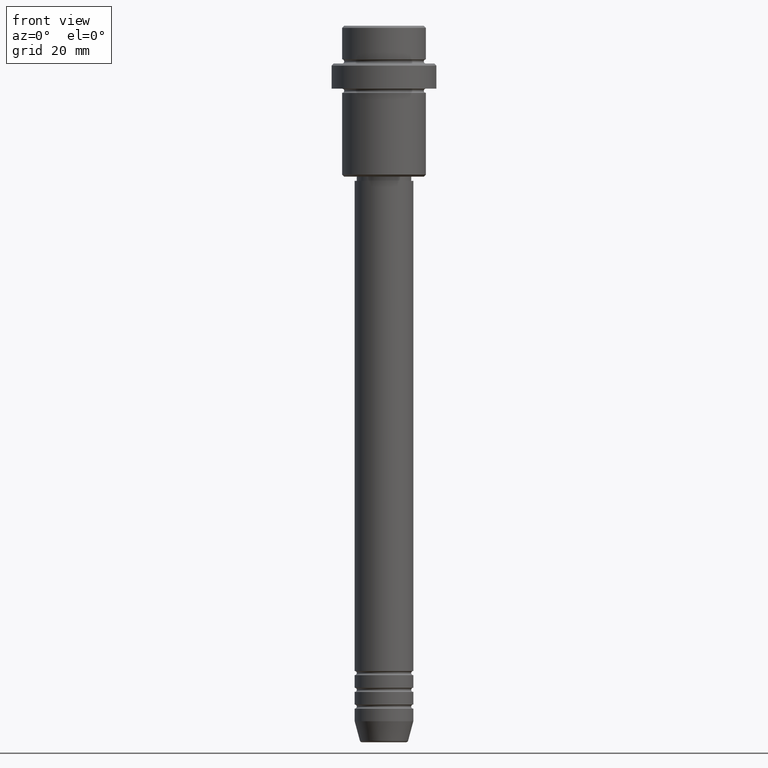
[diagram: clean part render]
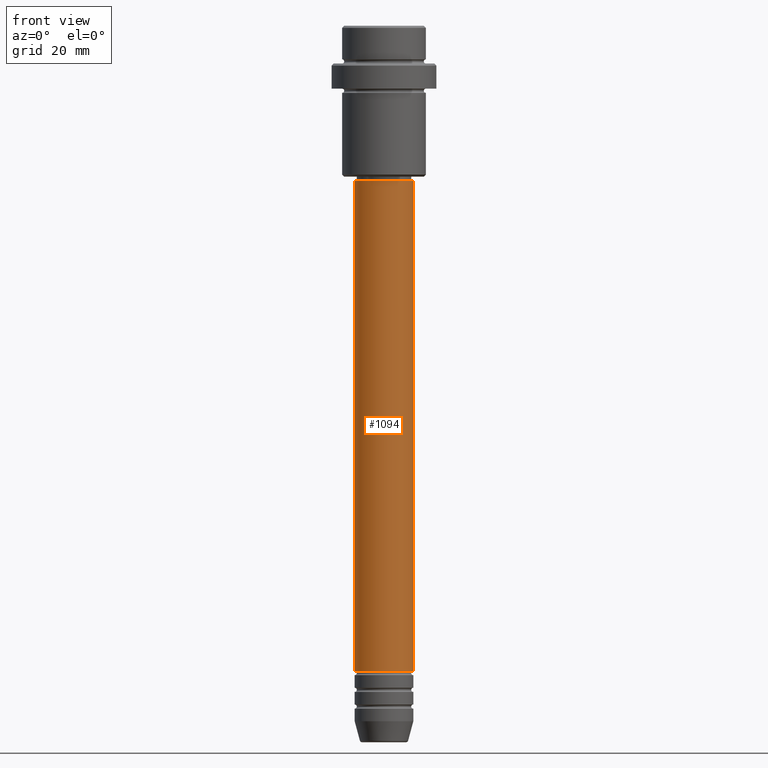
[diagram: same view with one face highlighted and labeled with its STEP entity id]
A machine part, front view. The second image highlights one B-rep face of the part: STEP entity #1094.
In plain terms, the highlighted cylindrical surface (edge-blend (fillet) strip) has radius 7 mm, axis along (-0, -0, 1).
Its self-contained STEP definition (entity closure, byte-faithful):
#8 = CARTESIAN_POINT ( 'NONE',  ( 7.000000000000000000, 0.000000000000000000, -37.00000000000000000 ) ) ;
#12 = ORIENTED_EDGE ( 'NONE', *, *, #130, .T. ) ;
#111 = DIRECTION ( 'NONE',  ( -0.000000000000000000, -0.000000000000000000, 1.000000000000000000 ) ) ;
#130 = EDGE_CURVE ( 'NONE', #711, #834, #197, .T. ) ;
#197 = CIRCLE ( 'NONE', #1015, 7.000000000000000000 ) ;
#216 = ORIENTED_EDGE ( 'NONE', *, *, #955, .T. ) ;
#251 = CIRCLE ( 'NONE', #1364, 7.000000000000000000 ) ;
#278 = CARTESIAN_POINT ( 'NONE',  ( -7.000000000000000000, 8.572527594031473190E-16, -37.00000000000000000 ) ) ;
#322 = VERTEX_POINT ( 'NONE', #278 ) ;
#362 = EDGE_CURVE ( 'NONE', #322, #603, #251, .T. ) ;
#398 = CARTESIAN_POINT ( 'NONE',  ( 7.000000000000000000, 0.000000000000000000, 0.000000000000000000 ) ) ;
#417 = DIRECTION ( 'NONE',  ( -0.000000000000000000, -0.000000000000000000, 1.000000000000000000 ) ) ;
#448 = EDGE_LOOP ( 'NONE', ( #697, #12, #216, #1158 ) ) ;
#495 = CARTESIAN_POINT ( 'NONE',  ( 7.000000000000000000, 0.000000000000000000, -153.9999999999998863 ) ) ;
#603 = VERTEX_POINT ( 'NONE', #8 ) ;
#679 = CARTESIAN_POINT ( 'NONE',  ( 0.000000000000000000, 0.000000000000000000, -153.9999999999998863 ) ) ;
#697 = ORIENTED_EDGE ( 'NONE', *, *, #1249, .F. ) ;
#707 = VECTOR ( 'NONE', #1046, 1000.000000000000000 ) ;
#711 = VERTEX_POINT ( 'NONE', #1013 ) ;
#712 = CARTESIAN_POINT ( 'NONE',  ( 0.000000000000000000, 0.000000000000000000, -37.00000000000000000 ) ) ;
#717 = DIRECTION ( 'NONE',  ( 1.000000000000000000, 0.000000000000000000, 0.000000000000000000 ) ) ;
#779 = AXIS2_PLACEMENT_3D ( 'NONE', #789, #111, #1114 ) ;
#789 = CARTESIAN_POINT ( 'NONE',  ( 0.000000000000000000, 0.000000000000000000, 0.000000000000000000 ) ) ;
#834 = VERTEX_POINT ( 'NONE', #495 ) ;
#917 = FACE_OUTER_BOUND ( 'NONE', #448, .T. ) ;
#919 = DIRECTION ( 'NONE',  ( -0.000000000000000000, -0.000000000000000000, 1.000000000000000000 ) ) ;
#934 = LINE ( 'NONE', #1253, #707 ) ;
#955 = EDGE_CURVE ( 'NONE', #834, #603, #1394, .T. ) ;
#1013 = CARTESIAN_POINT ( 'NONE',  ( -7.000000000000000000, 8.572527594031473190E-16, -153.9999999999998863 ) ) ;
#1015 = AXIS2_PLACEMENT_3D ( 'NONE', #679, #919, #1129 ) ;
#1046 = DIRECTION ( 'NONE',  ( -0.000000000000000000, -0.000000000000000000, 1.000000000000000000 ) ) ;
#1094 = ADVANCED_FACE ( 'NONE', ( #917 ), #1121, .T. ) ;
#1114 = DIRECTION ( 'NONE',  ( 1.000000000000000000, 0.000000000000000000, 0.000000000000000000 ) ) ;
#1121 = CYLINDRICAL_SURFACE ( 'NONE', #779, 7.000000000000000000 ) ;
#1129 = DIRECTION ( 'NONE',  ( 1.000000000000000000, 0.000000000000000000, 0.000000000000000000 ) ) ;
#1158 = ORIENTED_EDGE ( 'NONE', *, *, #362, .F. ) ;
#1249 = EDGE_CURVE ( 'NONE', #711, #322, #934, .T. ) ;
#1253 = CARTESIAN_POINT ( 'NONE',  ( -7.000000000000000000, 8.572527594031473190E-16, 0.000000000000000000 ) ) ;
#1265 = DIRECTION ( 'NONE',  ( -0.000000000000000000, -0.000000000000000000, 1.000000000000000000 ) ) ;
#1364 = AXIS2_PLACEMENT_3D ( 'NONE', #712, #1265, #717 ) ;
#1382 = VECTOR ( 'NONE', #417, 1000.000000000000000 ) ;
#1394 = LINE ( 'NONE', #398, #1382 ) ;